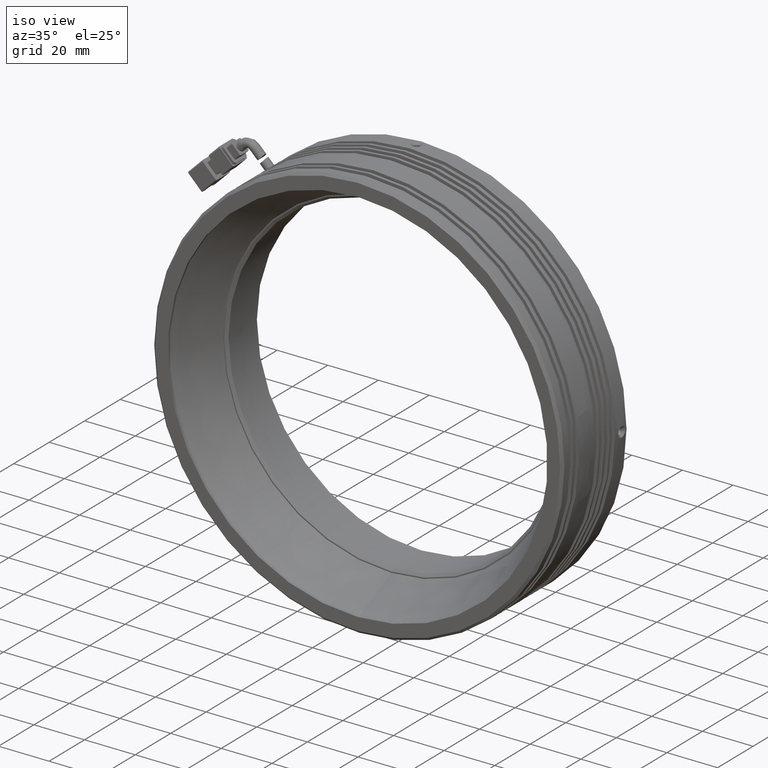
[diagram: clean part render]
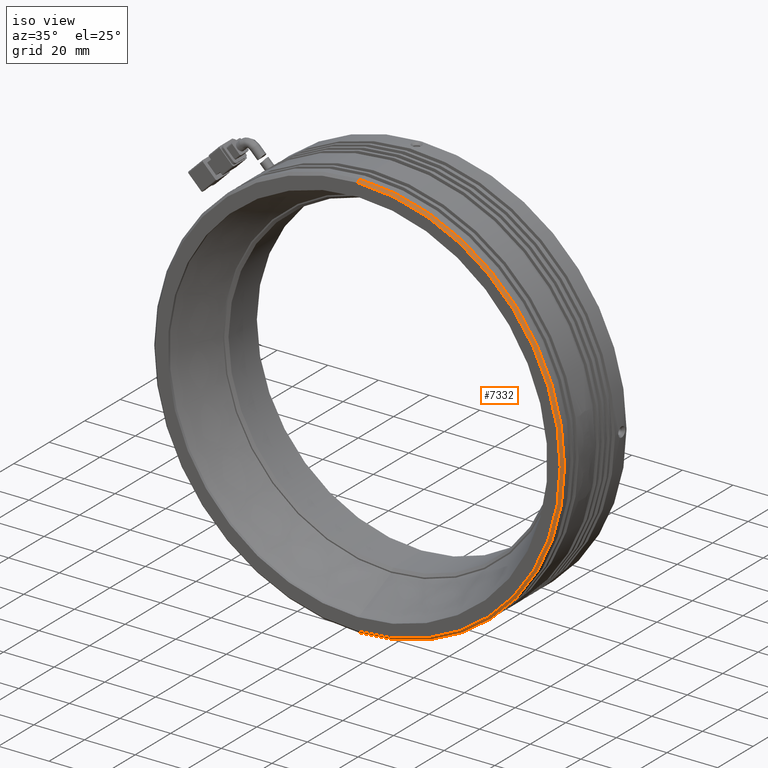
[diagram: same view with one face highlighted and labeled with its STEP entity id]
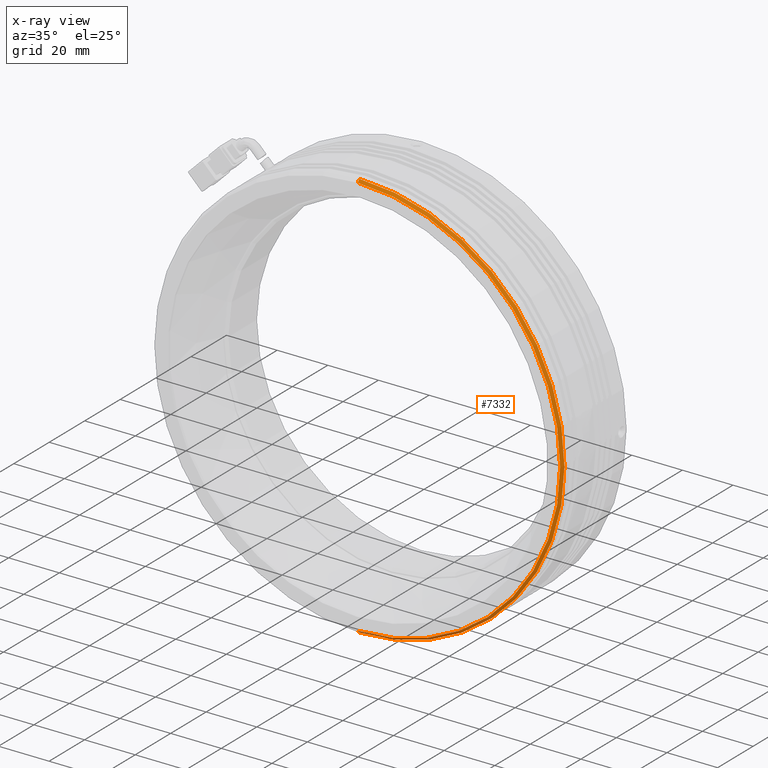
[diagram: x-ray of the same camera — body ghosted, the highlighted face saturated]
A machine part, iso view. The second image highlights one B-rep face of the part: STEP entity #7332.
The next image is the same camera in x-ray: the body ghosted, the highlighted face saturated — about 0% of this face is hidden behind the body in this view.
In plain terms, the highlighted conical surface has half-angle 45 deg.
Its self-contained STEP definition (entity closure, byte-faithful):
#65 = CARTESIAN_POINT ( 'NONE',  ( -9.785022266880025300, -9.128885628159958200, -79.99999999999998600 ) ) ;
#551 = DIRECTION ( 'NONE',  ( -0.0000000000000000000, -1.000000000000000000, -0.0000000000000000000 ) ) ;
#1400 = LINE ( 'NONE', #10468, #11855 ) ;
#2029 = CARTESIAN_POINT ( 'NONE',  ( -9.785022266880036000, -9.128885628159958200, 79.99999999999998600 ) ) ;
#2428 = DIRECTION ( 'NONE',  ( -0.0000000000000000000, 1.000000000000000000, 0.0000000000000000000 ) ) ;
#2604 = CARTESIAN_POINT ( 'NONE',  ( -9.785022266880036000, -8.128885628159942200, 81.00000000000000000 ) ) ;
#2674 = EDGE_LOOP ( 'NONE', ( #4552, #12183, #11442, #12321 ) ) ;
#2970 = CARTESIAN_POINT ( 'NONE',  ( -9.785022266880036000, -8.128885628159942200, -81.00000000000000000 ) ) ;
#3675 = DIRECTION ( 'NONE',  ( -0.0000000000000000000, 1.000000000000000000, 0.0000000000000000000 ) ) ;
#3756 = VERTEX_POINT ( 'NONE', #12181 ) ;
#3997 = CONICAL_SURFACE ( 'NONE', #13113, 81.00000000000000000, 0.7853981633974482800 ) ;
#4505 = CIRCLE ( 'NONE', #7324, 81.00000000000000000 ) ;
#4552 = ORIENTED_EDGE ( 'NONE', *, *, #4936, .T. ) ;
#4741 = VERTEX_POINT ( 'NONE', #65 ) ;
#4936 = EDGE_CURVE ( 'NONE', #9071, #4741, #9772, .T. ) ;
#4956 = EDGE_CURVE ( 'NONE', #4741, #5469, #1400, .T. ) ;
#5006 = EDGE_CURVE ( 'NONE', #5469, #3756, #4505, .T. ) ;
#5055 = EDGE_CURVE ( 'NONE', #9071, #3756, #11344, .T. ) ;
#5469 = VERTEX_POINT ( 'NONE', #2970 ) ;
#5625 = DIRECTION ( 'NONE',  ( 0.0000000000000000000, 0.7071067811865475700, 0.7071067811865474600 ) ) ;
#6549 = CARTESIAN_POINT ( 'NONE',  ( -9.785022266880036000, -8.128885628159942200, 0.0000000000000000000 ) ) ;
#6628 = CARTESIAN_POINT ( 'NONE',  ( -9.785022266880036000, -8.128885628159942200, 0.0000000000000000000 ) ) ;
#7324 = AXIS2_PLACEMENT_3D ( 'NONE', #6549, #551, #7569 ) ;
#7332 = ADVANCED_FACE ( 'NONE', ( #13084 ), #3997, .T. ) ;
#7433 = DIRECTION ( 'NONE',  ( 8.659560562354931600E-017, 0.7071067811865475700, -0.7071067811865474600 ) ) ;
#7569 = DIRECTION ( 'NONE',  ( 0.0000000000000000000, 4.283267841918042100E-017, 1.000000000000000000 ) ) ;
#7626 = AXIS2_PLACEMENT_3D ( 'NONE', #8459, #2428, #9473 ) ;
#7759 = DIRECTION ( 'NONE',  ( 0.0000000000000000000, 0.0000000000000000000, 1.000000000000000000 ) ) ;
#8459 = CARTESIAN_POINT ( 'NONE',  ( -9.785022266880036000, -9.128885628159958200, 0.0000000000000000000 ) ) ;
#8647 = VECTOR ( 'NONE', #5625, 1000.000000000000000 ) ;
#9071 = VERTEX_POINT ( 'NONE', #2029 ) ;
#9473 = DIRECTION ( 'NONE',  ( 0.0000000000000000000, 0.0000000000000000000, 1.000000000000000000 ) ) ;
#9772 = CIRCLE ( 'NONE', #7626, 79.99999999999998600 ) ;
#10468 = CARTESIAN_POINT ( 'NONE',  ( -9.785022266880025300, -8.128885628159942200, -81.00000000000000000 ) ) ;
#11344 = LINE ( 'NONE', #2604, #8647 ) ;
#11442 = ORIENTED_EDGE ( 'NONE', *, *, #5006, .T. ) ;
#11855 = VECTOR ( 'NONE', #7433, 1000.000000000000000 ) ;
#12181 = CARTESIAN_POINT ( 'NONE',  ( -9.785022266880025300, -8.128885628159942200, 81.00000000000000000 ) ) ;
#12183 = ORIENTED_EDGE ( 'NONE', *, *, #4956, .T. ) ;
#12321 = ORIENTED_EDGE ( 'NONE', *, *, #5055, .F. ) ;
#13084 = FACE_OUTER_BOUND ( 'NONE', #2674, .T. ) ;
#13113 = AXIS2_PLACEMENT_3D ( 'NONE', #6628, #3675, #7759 ) ;